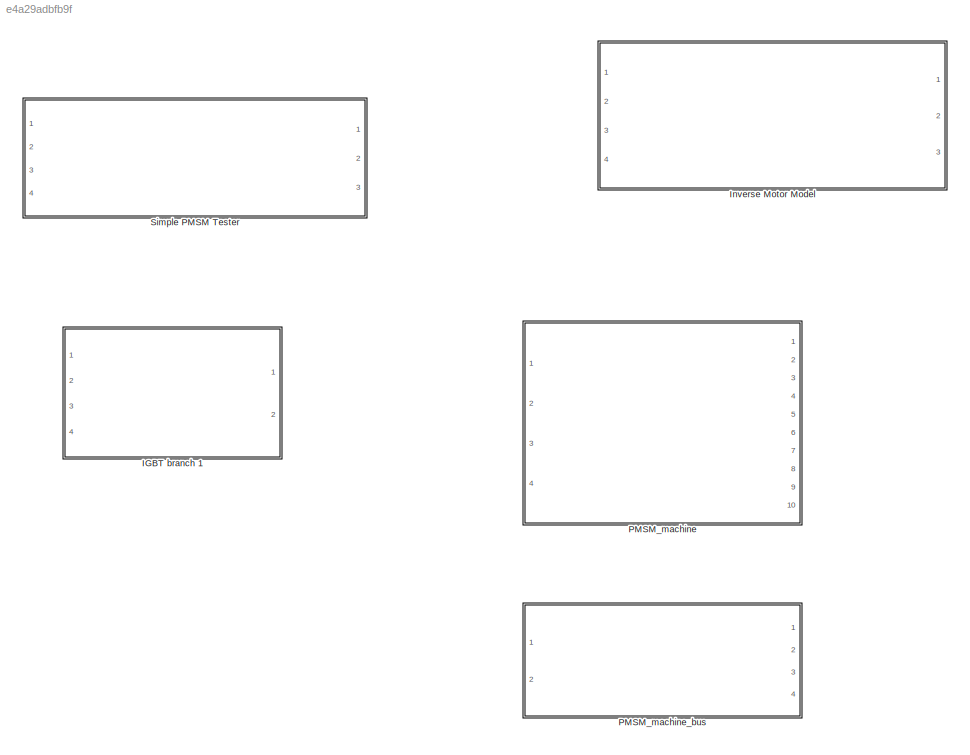
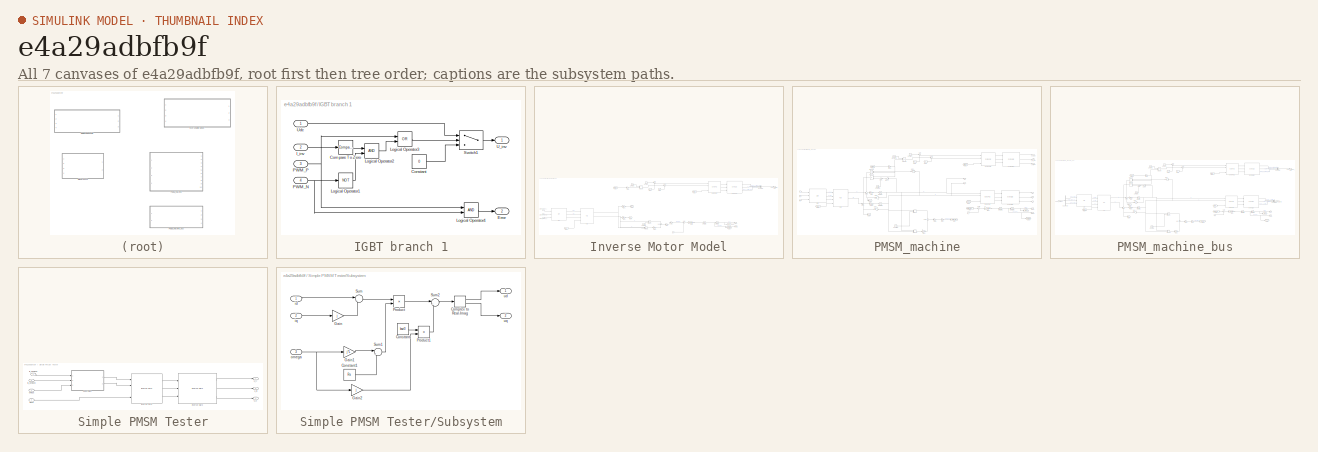
[diagram: thumbnail index - all 7 canvases of the model, root first then tree order]
MODEL slx_e4a29adbfb9f
KIND library
CONFIG AbsTol = auto
CONFIG EnableMultiTasking = off
CONFIG FixedStep = auto
CONFIG MaxStep = auto
CONFIG MinStep = auto
CONFIG RelTol = 1e-3
CONFIG SampleTimeConstraint = Unconstrained
CONFIG Solver = VariableStepAuto
CONFIG SolverName = VariableStepAuto
CONFIG StartTime = 0.0
CONFIG StopTime = 10.0
BLOCK [SubSystem] IGBT branch 1
  Ports = [4, 2]
  RequestExecContextInheritance = off
BLOCK [Reference] IGBT branch 1/Compare To Zero  REF=simulink/Logic and Bit
Operations/Compare
To Zero
  Ports = [1, 1]
  SourceBlock = simulink/Logic and Bit\nOperations/Compare\nTo Zero
  SourceProductBaseCode = SL
  SourceProductName = Simulink
  SourceType = Compare To Zero
BLOCK [Constant] IGBT branch 1/Constant
  Value = 0
BLOCK [Outport] IGBT branch 1/Error
  IconDisplay = Port number
  OutDataTypeStr = boolean
  Port = 2
BLOCK [Inport] IGBT branch 1/I_inv
  IconDisplay = Port number
  Port = 2
BLOCK [Logic] IGBT branch 1/Logical Operator1
  AllPortsSameDT = off
  Operator = NOT
  OutDataTypeStr = boolean
  Ports = [1, 1]
BLOCK [Logic] IGBT branch 1/Logical Operator2
  AllPortsSameDT = off
  OutDataTypeStr = boolean
  Ports = [2, 1]
BLOCK [Logic] IGBT branch 1/Logical Operator3
  AllPortsSameDT = off
  Operator = OR
  OutDataTypeStr = boolean
  Ports = [2, 1]
BLOCK [Logic] IGBT branch 1/Logical Operator4
  AllPortsSameDT = off
  OutDataTypeStr = boolean
  Ports = [2, 1]
BLOCK [Inport] IGBT branch 1/PWM_N
  IconDisplay = Port number
  Port = 4
BLOCK [Inport] IGBT branch 1/PWM_P
  IconDisplay = Port number
  Port = 3
BLOCK [Switch] IGBT branch 1/Switch1
  Criteria = u2 > Threshold
  InputSameDT = off
  SaturateOnIntegerOverflow = off
BLOCK [Outport] IGBT branch 1/U_inv
  IconDisplay = Port number
BLOCK [Inport] IGBT branch 1/Udc
  IconDisplay = Port number
BLOCK [SubSystem] Inverse Motor Model
  Ports = [4, 3]
  RequestExecContextInheritance = off
BLOCK [BusCreator] Inverse Motor Model/Bus Creator
  DisplayOption = bar
  InheritFromInputs = on
  Inputs = 3
  Ports = [3, 1]
BLOCK [Reference] Inverse Motor Model/Clark  REF=coordinate_transformations/Clark  (lib defined in slx_d357c885b4a9)
  Ports = [3, 3]
  SourceBlock = coordinate_transformations/Clark
  SourceType = SubSystem
BLOCK [Constant] Inverse Motor Model/Constant
  Value = 0
BLOCK [Constant] Inverse Motor Model/Constant1
  Value = kszi0
BLOCK [Constant] Inverse Motor Model/Constant2
  Value = kszi0
BLOCK [Inport] Inverse Motor Model/Current_Phase_A
  IconDisplay = Port number
BLOCK [Inport] Inverse Motor Model/Current_Phase_B
  IconDisplay = Port number
  Port = 2
BLOCK [Inport] Inverse Motor Model/Current_Phase_C
  IconDisplay = Port number
  Port = 3
BLOCK [From] Inverse Motor Model/From
  GotoTag = alpha
BLOCK [From] Inverse Motor Model/From1
  GotoTag = omega
BLOCK [From] Inverse Motor Model/From2
  GotoTag = alpha
BLOCK [From] Inverse Motor Model/From5
  GotoTag = Ud_r
BLOCK [From] Inverse Motor Model/From6
  GotoTag = Ul_r
BLOCK [Gain] Inverse Motor Model/Gain1
  Gain = Rs
  OutDataTypeStr = Inherit: Inherit via internal rule
  ParamDataTypeStr = Inherit: Inherit via internal rule
  SaturateOnIntegerOverflow = off
BLOCK [Gain] Inverse Motor Model/Gain2
  Gain = Rs
  OutDataTypeStr = Inherit: Inherit via internal rule
  ParamDataTypeStr = Inherit: Inherit via internal rule
  SaturateOnIntegerOverflow = off
BLOCK [Gain] Inverse Motor Model/Gain4
  Gain = 1/Theta
  OutDataTypeStr = Inherit: Inherit via internal rule
  ParamDataTypeStr = Inherit: Inherit via internal rule
  SaturateOnIntegerOverflow = off
BLOCK [Gain] Inverse Motor Model/Gain5
  Gain = Ld-Lq
  OutDataTypeStr = Inherit: Inherit via internal rule
  ParamDataTypeStr = Inherit: Inherit via internal rule
  SaturateOnIntegerOverflow = off
BLOCK [Gain] Inverse Motor Model/Gain6
  Gain = pp
  OutDataTypeStr = Inherit: Inherit via internal rule
  ParamDataTypeStr = Inherit: Inherit via internal rule
  SaturateOnIntegerOverflow = off
BLOCK [Gain] Inverse Motor Model/Gain7
  Gain = 3/2
  OutDataTypeStr = Inherit: Inherit via internal rule
  ParamDataTypeStr = Inherit: Inherit via internal rule
  SaturateOnIntegerOverflow = off
BLOCK [Gain] Inverse Motor Model/Gain9
  Gain = pp
  OutDataTypeStr = Inherit: Inherit via internal rule
  ParamDataTypeStr = Inherit: Inherit via internal rule
  SaturateOnIntegerOverflow = off
BLOCK [Goto] Inverse Motor Model/Goto1
  GotoTag = omega
BLOCK [Goto] Inverse Motor Model/Goto2
  GotoTag = alpha
BLOCK [Goto] Inverse Motor Model/Goto3
  GotoTag = Ud_r
BLOCK [Goto] Inverse Motor Model/Goto4
  GotoTag = Ul_r
BLOCK [Integrator] Inverse Motor Model/Integrator2
  Ports = [1, 1]
BLOCK [Integrator] Inverse Motor Model/Integrator3
  Ports = [1, 1]
BLOCK [Reference] Inverse Motor Model/Inverse-Clark1  REF=coordinate_transformations/Inverse-Clark  (lib defined in slx_d357c885b4a9)
  Ports = [3, 3]
  SourceBlock = coordinate_transformations/Inverse-Clark
  SourceType = SubSystem
BLOCK [Reference] Inverse Motor Model/Inverse-Park1  REF=coordinate_transformations/Inverse-Park  (lib defined in slx_d357c885b4a9)
  Ports = [4, 3]
  SourceBlock = coordinate_transformations/Inverse-Park
  SourceType = SubSystem
BLOCK [Inport] Inverse Motor Model/M_T
  IconDisplay = Port number
  Port = 4
BLOCK [Reference] Inverse Motor Model/Park  REF=coordinate_transformations/Park  (lib defined in slx_d357c885b4a9)
  Ports = [4, 3]
  SourceBlock = coordinate_transformations/Park
  SourceType = SubSystem
BLOCK [Outport] Inverse Motor Model/Phase_Voltages_EMU
  IconDisplay = Port number
BLOCK [Product] Inverse Motor Model/Product
  InputSameDT = off
  OutDataTypeStr = Inherit: Inherit via internal rule
  Ports = [2, 1]
  RndMeth = Floor
  SaturateOnIntegerOverflow = off
BLOCK [Product] Inverse Motor Model/Product1
  InputSameDT = off
  OutDataTypeStr = Inherit: Inherit via internal rule
  Ports = [2, 1]
  RndMeth = Floor
  SaturateOnIntegerOverflow = off
BLOCK [Product] Inverse Motor Model/Product4
  InputSameDT = off
  OutDataTypeStr = Inherit: Inherit via internal rule
  Ports = [2, 1]
  RndMeth = Floor
  SaturateOnIntegerOverflow = off
BLOCK [Sum] Inverse Motor Model/Sum
  IconShape = round
  InputSameDT = off
  Inputs = |++
  OutDataTypeStr = Inherit: Inherit via internal rule
  Ports = [2, 1]
  SaturateOnIntegerOverflow = off
BLOCK [Sum] Inverse Motor Model/Sum3
  IconShape = round
  InputSameDT = off
  Inputs = |++
  OutDataTypeStr = Inherit: Inherit via internal rule
  Ports = [2, 1]
  SaturateOnIntegerOverflow = off
BLOCK [Sum] Inverse Motor Model/Sum5
  IconShape = round
  InputSameDT = off
  Inputs = +|+
  OutDataTypeStr = Inherit: Inherit via internal rule
  Ports = [2, 1]
  SaturateOnIntegerOverflow = off
BLOCK [Sum] Inverse Motor Model/Sum6
  IconShape = round
  InputSameDT = off
  Inputs = |+-
  OutDataTypeStr = Inherit: Inherit via internal rule
  Ports = [2, 1]
  SaturateOnIntegerOverflow = off
BLOCK [Outport] Inverse Motor Model/alpha
  IconDisplay = Port number
  Port = 2
BLOCK [Outport] Inverse Motor Model/omega
  IconDisplay = Port number
  Port = 3
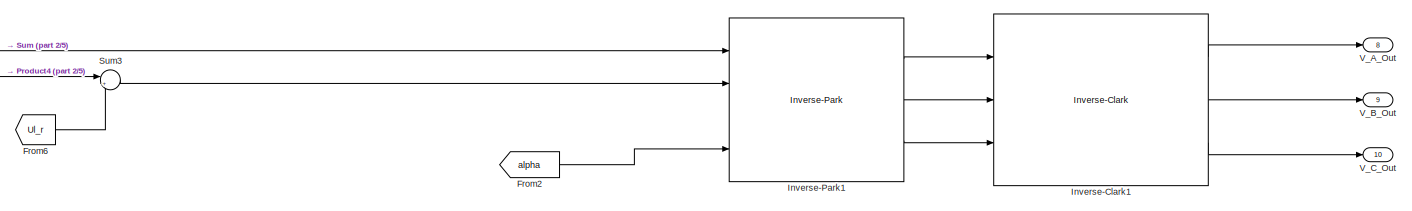
[diagram: PMSM_machine - part 1/5, top right region]
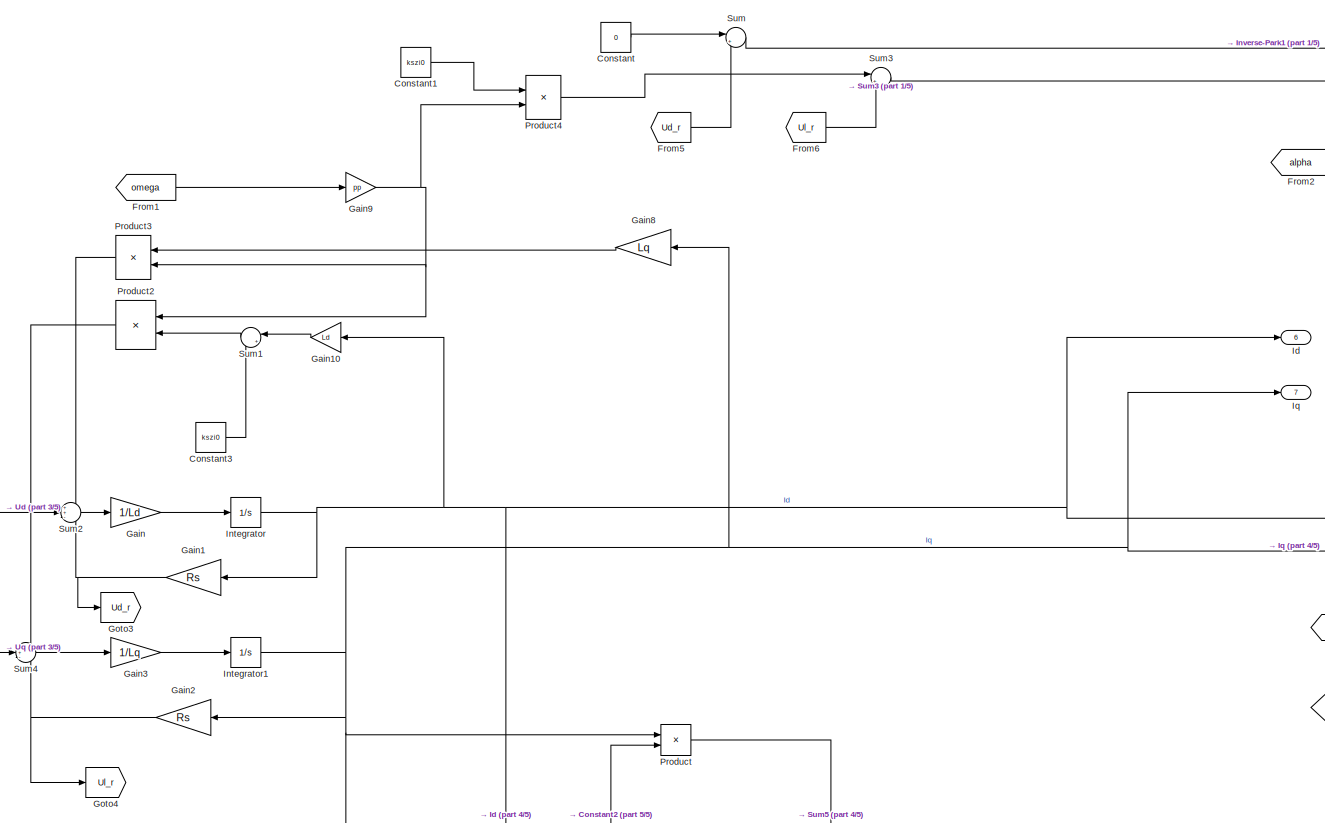
[diagram: PMSM_machine - part 2/5, center side, full height]
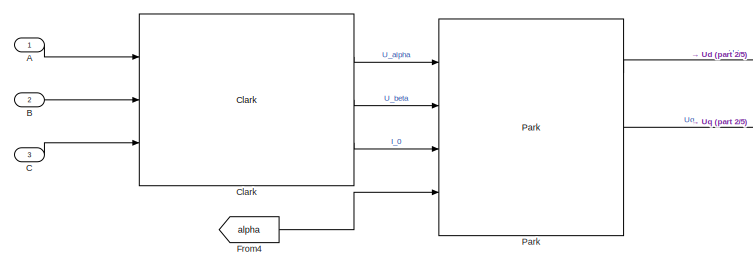
[diagram: PMSM_machine - part 3/5, middle left region]
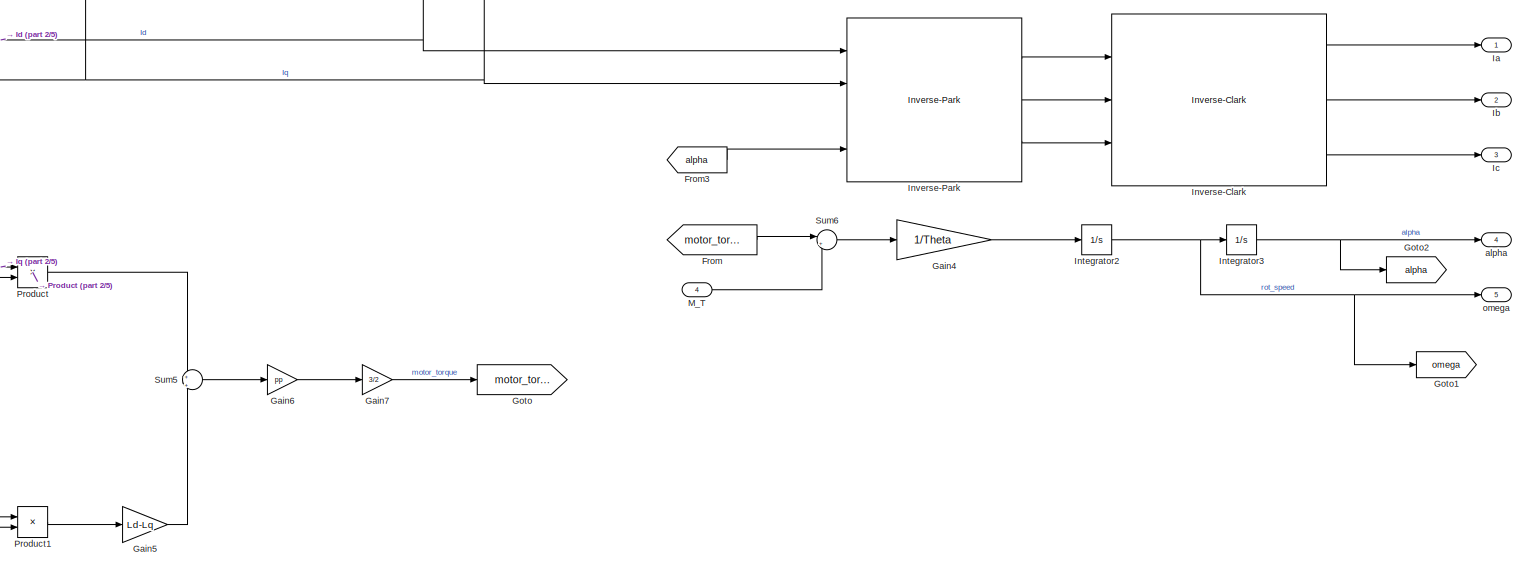
[diagram: PMSM_machine - part 4/5, bottom right region]
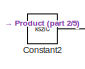
[diagram: PMSM_machine - part 5/5, bottom center region]
BLOCK [SubSystem] PMSM_machine
  Ports = [4, 10]
  RequestExecContextInheritance = off
BLOCK [Inport] PMSM_machine/A
  IconDisplay = Port number
BLOCK [Inport] PMSM_machine/B
  IconDisplay = Port number
  Port = 2
BLOCK [Inport] PMSM_machine/C
  IconDisplay = Port number
  Port = 3
BLOCK [Reference] PMSM_machine/Clark  REF=coordinate_transformations/Clark  (lib defined in slx_d357c885b4a9)
  Ports = [3, 3]
  SourceBlock = coordinate_transformations/Clark
  SourceType = SubSystem
BLOCK [Constant] PMSM_machine/Constant
  Value = 0
BLOCK [Constant] PMSM_machine/Constant1
  Value = kszi0
BLOCK [Constant] PMSM_machine/Constant2
  Value = kszi0
BLOCK [Constant] PMSM_machine/Constant3
  Value = kszi0
BLOCK [From] PMSM_machine/From
  GotoTag = motor_torque
BLOCK [From] PMSM_machine/From1
  GotoTag = omega
BLOCK [From] PMSM_machine/From2
  GotoTag = alpha
BLOCK [From] PMSM_machine/From3
  GotoTag = alpha
BLOCK [From] PMSM_machine/From4
  GotoTag = alpha
BLOCK [From] PMSM_machine/From5
  GotoTag = Ud_r
BLOCK [From] PMSM_machine/From6
  GotoTag = Ul_r
BLOCK [Gain] PMSM_machine/Gain
  Gain = 1/Ld
  OutDataTypeStr = Inherit: Inherit via internal rule
  ParamDataTypeStr = Inherit: Inherit via internal rule
  SaturateOnIntegerOverflow = off
BLOCK [Gain] PMSM_machine/Gain1
  Gain = Rs
  OutDataTypeStr = Inherit: Inherit via internal rule
  ParamDataTypeStr = Inherit: Inherit via internal rule
  SaturateOnIntegerOverflow = off
BLOCK [Gain] PMSM_machine/Gain10
  Gain = Ld
  OutDataTypeStr = Inherit: Inherit via internal rule
  ParamDataTypeStr = Inherit: Inherit via internal rule
  SaturateOnIntegerOverflow = off
BLOCK [Gain] PMSM_machine/Gain2
  Gain = Rs
  OutDataTypeStr = Inherit: Inherit via internal rule
  ParamDataTypeStr = Inherit: Inherit via internal rule
  SaturateOnIntegerOverflow = off
BLOCK [Gain] PMSM_machine/Gain3
  Gain = 1/Lq
  OutDataTypeStr = Inherit: Inherit via internal rule
  ParamDataTypeStr = Inherit: Inherit via internal rule
  SaturateOnIntegerOverflow = off
BLOCK [Gain] PMSM_machine/Gain4
  Gain = 1/Theta
  OutDataTypeStr = Inherit: Inherit via internal rule
  ParamDataTypeStr = Inherit: Inherit via internal rule
  SaturateOnIntegerOverflow = off
BLOCK [Gain] PMSM_machine/Gain5
  Gain = Ld-Lq
  OutDataTypeStr = Inherit: Inherit via internal rule
  ParamDataTypeStr = Inherit: Inherit via internal rule
  SaturateOnIntegerOverflow = off
BLOCK [Gain] PMSM_machine/Gain6
  Gain = pp
  OutDataTypeStr = Inherit: Inherit via internal rule
  ParamDataTypeStr = Inherit: Inherit via internal rule
  SaturateOnIntegerOverflow = off
BLOCK [Gain] PMSM_machine/Gain7
  Gain = 3/2
  OutDataTypeStr = Inherit: Inherit via internal rule
  ParamDataTypeStr = Inherit: Inherit via internal rule
  SaturateOnIntegerOverflow = off
BLOCK [Gain] PMSM_machine/Gain8
  Gain = Lq
  OutDataTypeStr = Inherit: Inherit via internal rule
  ParamDataTypeStr = Inherit: Inherit via internal rule
  SaturateOnIntegerOverflow = off
BLOCK [Gain] PMSM_machine/Gain9
  Gain = pp
  OutDataTypeStr = Inherit: Inherit via internal rule
  ParamDataTypeStr = Inherit: Inherit via internal rule
  SaturateOnIntegerOverflow = off
BLOCK [Goto] PMSM_machine/Goto
  GotoTag = motor_torque
BLOCK [Goto] PMSM_machine/Goto1
  GotoTag = omega
BLOCK [Goto] PMSM_machine/Goto2
  GotoTag = alpha
BLOCK [Goto] PMSM_machine/Goto3
  GotoTag = Ud_r
BLOCK [Goto] PMSM_machine/Goto4
  GotoTag = Ul_r
BLOCK [Outport] PMSM_machine/Ia
  IconDisplay = Port number
BLOCK [Outport] PMSM_machine/Ib
  IconDisplay = Port number
  Port = 2
BLOCK [Outport] PMSM_machine/Ic
  IconDisplay = Port number
  Port = 3
BLOCK [Outport] PMSM_machine/Id
  IconDisplay = Port number
  Port = 6
BLOCK [Integrator] PMSM_machine/Integrator
  Ports = [1, 1]
BLOCK [Integrator] PMSM_machine/Integrator1
  Ports = [1, 1]
BLOCK [Integrator] PMSM_machine/Integrator2
  Ports = [1, 1]
BLOCK [Integrator] PMSM_machine/Integrator3
  Ports = [1, 1]
BLOCK [Reference] PMSM_machine/Inverse-Clark  REF=coordinate_transformations/Inverse-Clark  (lib defined in slx_d357c885b4a9)
  Ports = [3, 3]
  SourceBlock = coordinate_transformations/Inverse-Clark
  SourceType = SubSystem
BLOCK [Reference] PMSM_machine/Inverse-Clark1  REF=coordinate_transformations/Inverse-Clark  (lib defined in slx_d357c885b4a9)
  Ports = [3, 3]
  SourceBlock = coordinate_transformations/Inverse-Clark
  SourceType = SubSystem
BLOCK [Reference] PMSM_machine/Inverse-Park  REF=coordinate_transformations/Inverse-Park  (lib defined in slx_d357c885b4a9)
  Ports = [4, 3]
  SourceBlock = coordinate_transformations/Inverse-Park
  SourceType = SubSystem
BLOCK [Reference] PMSM_machine/Inverse-Park1  REF=coordinate_transformations/Inverse-Park  (lib defined in slx_d357c885b4a9)
  Ports = [4, 3]
  SourceBlock = coordinate_transformations/Inverse-Park
  SourceType = SubSystem
BLOCK [Outport] PMSM_machine/Iq 
  IconDisplay = Port number
  Port = 7
BLOCK [Inport] PMSM_machine/M_T
  IconDisplay = Port number
  Port = 4
BLOCK [Reference] PMSM_machine/Park  REF=coordinate_transformations/Park  (lib defined in slx_d357c885b4a9)
  Ports = [4, 3]
  SourceBlock = coordinate_transformations/Park
  SourceType = SubSystem
BLOCK [Product] PMSM_machine/Product
  InputSameDT = off
  OutDataTypeStr = Inherit: Inherit via internal rule
  Ports = [2, 1]
  RndMeth = Floor
  SaturateOnIntegerOverflow = off
BLOCK [Product] PMSM_machine/Product1
  InputSameDT = off
  OutDataTypeStr = Inherit: Inherit via internal rule
  Ports = [2, 1]
  RndMeth = Floor
  SaturateOnIntegerOverflow = off
BLOCK [Product] PMSM_machine/Product2
  InputSameDT = off
  OutDataTypeStr = Inherit: Inherit via internal rule
  Ports = [2, 1]
  RndMeth = Floor
  SaturateOnIntegerOverflow = off
BLOCK [Product] PMSM_machine/Product3
  InputSameDT = off
  OutDataTypeStr = Inherit: Inherit via internal rule
  Ports = [2, 1]
  RndMeth = Floor
  SaturateOnIntegerOverflow = off
BLOCK [Product] PMSM_machine/Product4
  InputSameDT = off
  OutDataTypeStr = Inherit: Inherit via internal rule
  Ports = [2, 1]
  RndMeth = Floor
  SaturateOnIntegerOverflow = off
BLOCK [Sum] PMSM_machine/Sum
  IconShape = round
  InputSameDT = off
  Inputs = |++
  OutDataTypeStr = Inherit: Inherit via internal rule
  Ports = [2, 1]
  SaturateOnIntegerOverflow = off
BLOCK [Sum] PMSM_machine/Sum1
  IconShape = round
  InputSameDT = off
  Inputs = |++
  OutDataTypeStr = Inherit: Inherit via internal rule
  Ports = [2, 1]
  SaturateOnIntegerOverflow = off
BLOCK [Sum] PMSM_machine/Sum2
  IconShape = round
  InputSameDT = off
  Inputs = ++-
  OutDataTypeStr = Inherit: Inherit via internal rule
  Ports = [3, 1]
  SaturateOnIntegerOverflow = off
BLOCK [Sum] PMSM_machine/Sum3
  IconShape = round
  InputSameDT = off
  Inputs = |++
  OutDataTypeStr = Inherit: Inherit via internal rule
  Ports = [2, 1]
  SaturateOnIntegerOverflow = off
BLOCK [Sum] PMSM_machine/Sum4
  IconShape = round
  InputSameDT = off
  Inputs = -+-
  OutDataTypeStr = Inherit: Inherit via internal rule
  Ports = [3, 1]
  SaturateOnIntegerOverflow = off
BLOCK [Sum] PMSM_machine/Sum5
  IconShape = round
  InputSameDT = off
  Inputs = +|+
  OutDataTypeStr = Inherit: Inherit via internal rule
  Ports = [2, 1]
  SaturateOnIntegerOverflow = off
BLOCK [Sum] PMSM_machine/Sum6
  IconShape = round
  InputSameDT = off
  Inputs = |+-
  OutDataTypeStr = Inherit: Inherit via internal rule
  Ports = [2, 1]
  SaturateOnIntegerOverflow = off
BLOCK [Outport] PMSM_machine/V_A_Out
  IconDisplay = Port number
  Port = 8
BLOCK [Outport] PMSM_machine/V_B_Out
  IconDisplay = Port number
  Port = 9
BLOCK [Outport] PMSM_machine/V_C_Out
  IconDisplay = Port number
  Port = 10
BLOCK [Outport] PMSM_machine/alpha
  IconDisplay = Port number
  Port = 4
BLOCK [Outport] PMSM_machine/omega
  IconDisplay = Port number
  Port = 5
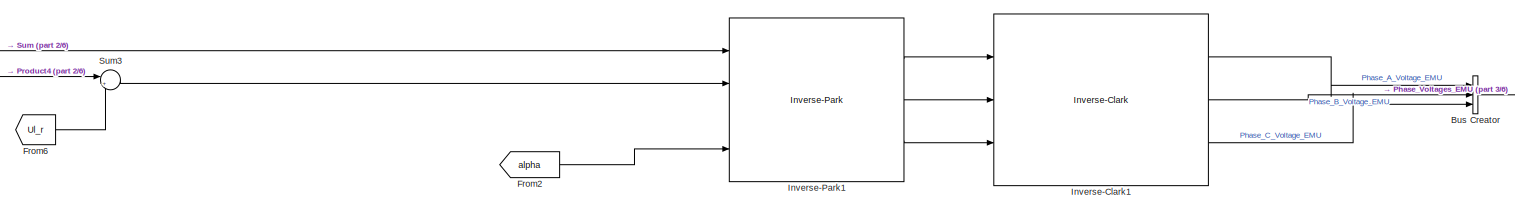
[diagram: PMSM_machine_bus - part 1/6, top right region]
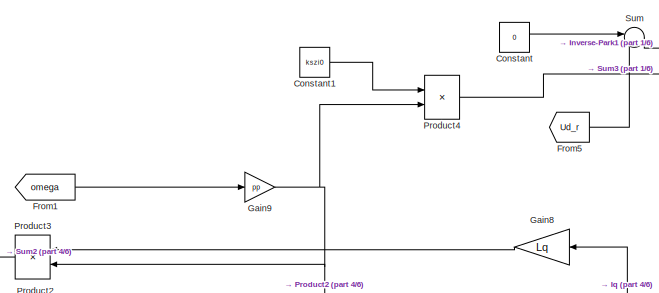
[diagram: PMSM_machine_bus - part 2/6, top center region]
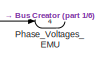
[diagram: PMSM_machine_bus - part 3/6, top right region]
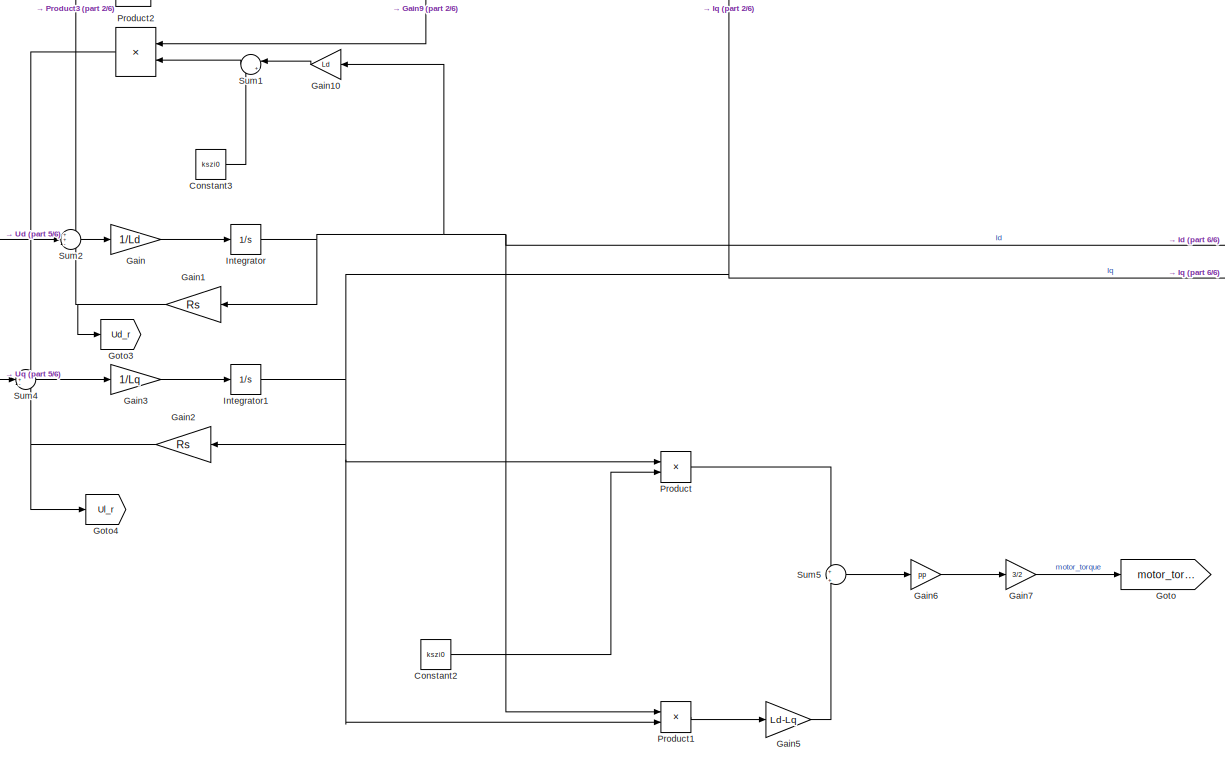
[diagram: PMSM_machine_bus - part 4/6, central region]
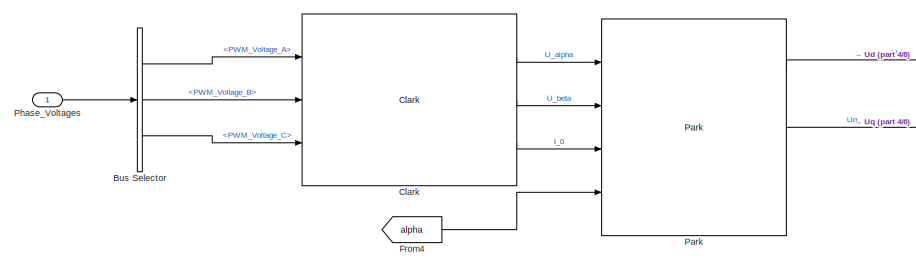
[diagram: PMSM_machine_bus - part 5/6, middle left region]
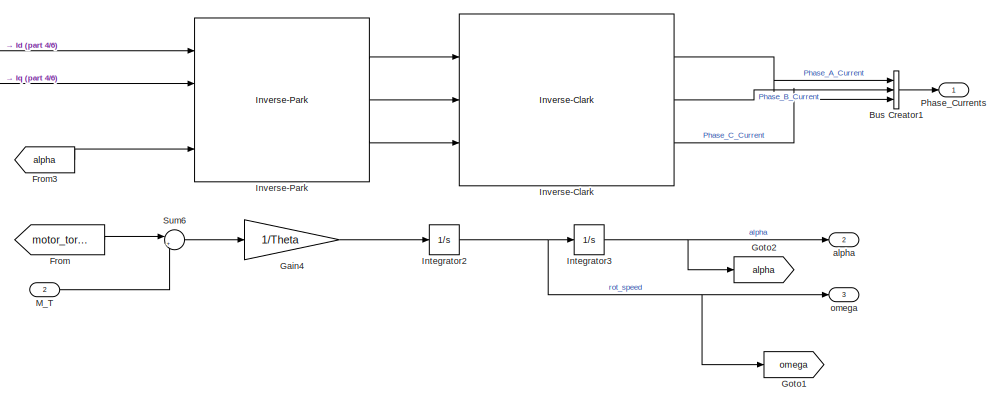
[diagram: PMSM_machine_bus - part 6/6, middle right region]
BLOCK [SubSystem] PMSM_machine_bus
  AncestorBlock = PE_components/PMSM_machine
  Ports = [2, 4]
  RequestExecContextInheritance = off
BLOCK [BusCreator] PMSM_machine_bus/Bus Creator
  DisplayOption = bar
  InheritFromInputs = on
  Inputs = 3
  Ports = [3, 1]
BLOCK [BusCreator] PMSM_machine_bus/Bus Creator1
  DisplayOption = bar
  InheritFromInputs = on
  Inputs = 3
  Ports = [3, 1]
BLOCK [BusSelector] PMSM_machine_bus/Bus Selector
  OutputAsBus = off
  OutputSignals = PWM_Voltage_A,PWM_Voltage_B,PWM_Voltage_C
  Ports = [1, 3]
BLOCK [Reference] PMSM_machine_bus/Clark  REF=coordinate_transformations/Clark  (lib defined in slx_d357c885b4a9)
  Ports = [3, 3]
  SourceBlock = coordinate_transformations/Clark
  SourceType = SubSystem
BLOCK [Constant] PMSM_machine_bus/Constant
  Value = 0
BLOCK [Constant] PMSM_machine_bus/Constant1
  Value = kszi0
BLOCK [Constant] PMSM_machine_bus/Constant2
  Value = kszi0
BLOCK [Constant] PMSM_machine_bus/Constant3
  Value = kszi0
BLOCK [From] PMSM_machine_bus/From
  GotoTag = motor_torque
BLOCK [From] PMSM_machine_bus/From1
  GotoTag = omega
BLOCK [From] PMSM_machine_bus/From2
  GotoTag = alpha
BLOCK [From] PMSM_machine_bus/From3
  GotoTag = alpha
BLOCK [From] PMSM_machine_bus/From4
  GotoTag = alpha
BLOCK [From] PMSM_machine_bus/From5
  GotoTag = Ud_r
BLOCK [From] PMSM_machine_bus/From6
  GotoTag = Ul_r
BLOCK [Gain] PMSM_machine_bus/Gain
  Gain = 1/Ld
  OutDataTypeStr = Inherit: Inherit via internal rule
  ParamDataTypeStr = Inherit: Inherit via internal rule
  SaturateOnIntegerOverflow = off
BLOCK [Gain] PMSM_machine_bus/Gain1
  Gain = Rs
  OutDataTypeStr = Inherit: Inherit via internal rule
  ParamDataTypeStr = Inherit: Inherit via internal rule
  SaturateOnIntegerOverflow = off
BLOCK [Gain] PMSM_machine_bus/Gain10
  Gain = Ld
  OutDataTypeStr = Inherit: Inherit via internal rule
  ParamDataTypeStr = Inherit: Inherit via internal rule
  SaturateOnIntegerOverflow = off
BLOCK [Gain] PMSM_machine_bus/Gain2
  Gain = Rs
  OutDataTypeStr = Inherit: Inherit via internal rule
  ParamDataTypeStr = Inherit: Inherit via internal rule
  SaturateOnIntegerOverflow = off
BLOCK [Gain] PMSM_machine_bus/Gain3
  Gain = 1/Lq
  OutDataTypeStr = Inherit: Inherit via internal rule
  ParamDataTypeStr = Inherit: Inherit via internal rule
  SaturateOnIntegerOverflow = off
BLOCK [Gain] PMSM_machine_bus/Gain4
  Gain = 1/Theta
  OutDataTypeStr = Inherit: Inherit via internal rule
  ParamDataTypeStr = Inherit: Inherit via internal rule
  SaturateOnIntegerOverflow = off
BLOCK [Gain] PMSM_machine_bus/Gain5
  Gain = Ld-Lq
  OutDataTypeStr = Inherit: Inherit via internal rule
  ParamDataTypeStr = Inherit: Inherit via internal rule
  SaturateOnIntegerOverflow = off
BLOCK [Gain] PMSM_machine_bus/Gain6
  Gain = pp
  OutDataTypeStr = Inherit: Inherit via internal rule
  ParamDataTypeStr = Inherit: Inherit via internal rule
  SaturateOnIntegerOverflow = off
BLOCK [Gain] PMSM_machine_bus/Gain7
  Gain = 3/2
  OutDataTypeStr = Inherit: Inherit via internal rule
  ParamDataTypeStr = Inherit: Inherit via internal rule
  SaturateOnIntegerOverflow = off
BLOCK [Gain] PMSM_machine_bus/Gain8
  Gain = Lq
  OutDataTypeStr = Inherit: Inherit via internal rule
  ParamDataTypeStr = Inherit: Inherit via internal rule
  SaturateOnIntegerOverflow = off
BLOCK [Gain] PMSM_machine_bus/Gain9
  Gain = pp
  OutDataTypeStr = Inherit: Inherit via internal rule
  ParamDataTypeStr = Inherit: Inherit via internal rule
  SaturateOnIntegerOverflow = off
BLOCK [Goto] PMSM_machine_bus/Goto
  GotoTag = motor_torque
BLOCK [Goto] PMSM_machine_bus/Goto1
  GotoTag = omega
BLOCK [Goto] PMSM_machine_bus/Goto2
  GotoTag = alpha
BLOCK [Goto] PMSM_machine_bus/Goto3
  GotoTag = Ud_r
BLOCK [Goto] PMSM_machine_bus/Goto4
  GotoTag = Ul_r
BLOCK [Integrator] PMSM_machine_bus/Integrator
  Ports = [1, 1]
BLOCK [Integrator] PMSM_machine_bus/Integrator1
  Ports = [1, 1]
BLOCK [Integrator] PMSM_machine_bus/Integrator2
  Ports = [1, 1]
BLOCK [Integrator] PMSM_machine_bus/Integrator3
  Ports = [1, 1]
BLOCK [Reference] PMSM_machine_bus/Inverse-Clark  REF=coordinate_transformations/Inverse-Clark  (lib defined in slx_d357c885b4a9)
  Ports = [3, 3]
  SourceBlock = coordinate_transformations/Inverse-Clark
  SourceType = SubSystem
BLOCK [Reference] PMSM_machine_bus/Inverse-Clark1  REF=coordinate_transformations/Inverse-Clark  (lib defined in slx_d357c885b4a9)
  Ports = [3, 3]
  SourceBlock = coordinate_transformations/Inverse-Clark
  SourceType = SubSystem
BLOCK [Reference] PMSM_machine_bus/Inverse-Park  REF=coordinate_transformations/Inverse-Park  (lib defined in slx_d357c885b4a9)
  Ports = [4, 3]
  SourceBlock = coordinate_transformations/Inverse-Park
  SourceType = SubSystem
BLOCK [Reference] PMSM_machine_bus/Inverse-Park1  REF=coordinate_transformations/Inverse-Park  (lib defined in slx_d357c885b4a9)
  Ports = [4, 3]
  SourceBlock = coordinate_transformations/Inverse-Park
  SourceType = SubSystem
BLOCK [Inport] PMSM_machine_bus/M_T
  IconDisplay = Port number
  Port = 2
BLOCK [Reference] PMSM_machine_bus/Park  REF=coordinate_transformations/Park  (lib defined in slx_d357c885b4a9)
  Ports = [4, 3]
  SourceBlock = coordinate_transformations/Park
  SourceType = SubSystem
BLOCK [Outport] PMSM_machine_bus/Phase_Currents
  IconDisplay = Port number
BLOCK [Inport] PMSM_machine_bus/Phase_Voltages
  IconDisplay = Port number
BLOCK [Outport] PMSM_machine_bus/Phase_Voltages_EMU
  IconDisplay = Port number
  Port = 4
BLOCK [Product] PMSM_machine_bus/Product
  InputSameDT = off
  OutDataTypeStr = Inherit: Inherit via internal rule
  Ports = [2, 1]
  RndMeth = Floor
  SaturateOnIntegerOverflow = off
BLOCK [Product] PMSM_machine_bus/Product1
  InputSameDT = off
  OutDataTypeStr = Inherit: Inherit via internal rule
  Ports = [2, 1]
  RndMeth = Floor
  SaturateOnIntegerOverflow = off
BLOCK [Product] PMSM_machine_bus/Product2
  InputSameDT = off
  OutDataTypeStr = Inherit: Inherit via internal rule
  Ports = [2, 1]
  RndMeth = Floor
  SaturateOnIntegerOverflow = off
BLOCK [Product] PMSM_machine_bus/Product3
  InputSameDT = off
  OutDataTypeStr = Inherit: Inherit via internal rule
  Ports = [2, 1]
  RndMeth = Floor
  SaturateOnIntegerOverflow = off
BLOCK [Product] PMSM_machine_bus/Product4
  InputSameDT = off
  OutDataTypeStr = Inherit: Inherit via internal rule
  Ports = [2, 1]
  RndMeth = Floor
  SaturateOnIntegerOverflow = off
BLOCK [Sum] PMSM_machine_bus/Sum
  IconShape = round
  InputSameDT = off
  Inputs = |++
  OutDataTypeStr = Inherit: Inherit via internal rule
  Ports = [2, 1]
  SaturateOnIntegerOverflow = off
BLOCK [Sum] PMSM_machine_bus/Sum1
  IconShape = round
  InputSameDT = off
  Inputs = |++
  OutDataTypeStr = Inherit: Inherit via internal rule
  Ports = [2, 1]
  SaturateOnIntegerOverflow = off
BLOCK [Sum] PMSM_machine_bus/Sum2
  IconShape = round
  InputSameDT = off
  Inputs = ++-
  OutDataTypeStr = Inherit: Inherit via internal rule
  Ports = [3, 1]
  SaturateOnIntegerOverflow = off
BLOCK [Sum] PMSM_machine_bus/Sum3
  IconShape = round
  InputSameDT = off
  Inputs = |++
  OutDataTypeStr = Inherit: Inherit via internal rule
  Ports = [2, 1]
  SaturateOnIntegerOverflow = off
BLOCK [Sum] PMSM_machine_bus/Sum4
  IconShape = round
  InputSameDT = off
  Inputs = -+-
  OutDataTypeStr = Inherit: Inherit via internal rule
  Ports = [3, 1]
  SaturateOnIntegerOverflow = off
BLOCK [Sum] PMSM_machine_bus/Sum5
  IconShape = round
  InputSameDT = off
  Inputs = +|+
  OutDataTypeStr = Inherit: Inherit via internal rule
  Ports = [2, 1]
  SaturateOnIntegerOverflow = off
BLOCK [Sum] PMSM_machine_bus/Sum6
  IconShape = round
  InputSameDT = off
  Inputs = |+-
  OutDataTypeStr = Inherit: Inherit via internal rule
  Ports = [2, 1]
  SaturateOnIntegerOverflow = off
BLOCK [Outport] PMSM_machine_bus/alpha
  IconDisplay = Port number
  Port = 2
BLOCK [Outport] PMSM_machine_bus/omega
  IconDisplay = Port number
  Port = 3
BLOCK [SubSystem] Simple PMSM Tester
  Ports = [4, 3]
  RequestExecContextInheritance = off
BLOCK [Reference] Simple PMSM Tester/Inverse-Clark  REF=coordinate_transformations/Inverse-Clark  (lib defined in slx_d357c885b4a9)
  Ports = [3, 3]
  SourceBlock = coordinate_transformations/Inverse-Clark
  SourceType = SubSystem
BLOCK [Reference] Simple PMSM Tester/Inverse-Park  REF=coordinate_transformations/Inverse-Park  (lib defined in slx_d357c885b4a9)
  Ports = [4, 3]
  SourceBlock = coordinate_transformations/Inverse-Park
  SourceType = SubSystem
BLOCK [SubSystem] Simple PMSM Tester/Subsystem
  Ports = [3, 2]
  RequestExecContextInheritance = off
BLOCK [ComplexToRealImag] Simple PMSM Tester/Subsystem/Complex to Real-Imag
  Ports = [1, 2]
BLOCK [Constant] Simple PMSM Tester/Subsystem/Constant
  Value = kszi0
BLOCK [Constant] Simple PMSM Tester/Subsystem/Constant1
  Value = Rs
BLOCK [Gain] Simple PMSM Tester/Subsystem/Gain
  Gain = j
  OutDataTypeStr = Inherit: Inherit via internal rule
  ParamDataTypeStr = Inherit: Inherit via internal rule
  SaturateOnIntegerOverflow = off
BLOCK [Gain] Simple PMSM Tester/Subsystem/Gain1
  Gain = j*L
  OutDataTypeStr = Inherit: Inherit via internal rule
  ParamDataTypeStr = Inherit: Inherit via internal rule
  SaturateOnIntegerOverflow = off
BLOCK [Gain] Simple PMSM Tester/Subsystem/Gain2
  Gain = j
  OutDataTypeStr = Inherit: Inherit via internal rule
  ParamDataTypeStr = Inherit: Inherit via internal rule
  SaturateOnIntegerOverflow = off
BLOCK [Product] Simple PMSM Tester/Subsystem/Product
  InputSameDT = off
  OutDataTypeStr = Inherit: Inherit via internal rule
  Ports = [2, 1]
  RndMeth = Floor
  SaturateOnIntegerOverflow = off
BLOCK [Product] Simple PMSM Tester/Subsystem/Product1
  InputSameDT = off
  OutDataTypeStr = Inherit: Inherit via internal rule
  Ports = [2, 1]
  RndMeth = Floor
  SaturateOnIntegerOverflow = off
BLOCK [Sum] Simple PMSM Tester/Subsystem/Sum
  IconShape = round
  InputSameDT = off
  Inputs = |++
  OutDataTypeStr = Inherit: Inherit via internal rule
  Ports = [2, 1]
  SaturateOnIntegerOverflow = off
BLOCK [Sum] Simple PMSM Tester/Subsystem/Sum1
  IconShape = round
  InputSameDT = off
  Inputs = |++
  OutDataTypeStr = Inherit: Inherit via internal rule
  Ports = [2, 1]
  SaturateOnIntegerOverflow = off
BLOCK [Sum] Simple PMSM Tester/Subsystem/Sum2
  IconShape = round
  InputSameDT = off
  Inputs = |++
  OutDataTypeStr = Inherit: Inherit via internal rule
  Ports = [2, 1]
  SaturateOnIntegerOverflow = off
BLOCK [Inport] Simple PMSM Tester/Subsystem/id
  IconDisplay = Port number
BLOCK [Inport] Simple PMSM Tester/Subsystem/iq 
  IconDisplay = Port number
  Port = 2
BLOCK [Inport] Simple PMSM Tester/Subsystem/omega
  IconDisplay = Port number
  Port = 3
BLOCK [Outport] Simple PMSM Tester/Subsystem/ud
  IconDisplay = Port number
BLOCK [Outport] Simple PMSM Tester/Subsystem/uq
  IconDisplay = Port number
  Port = 2
BLOCK [Outport] Simple PMSM Tester/U_A
  IconDisplay = Port number
BLOCK [Outport] Simple PMSM Tester/U_B
  IconDisplay = Port number
  Port = 2
BLOCK [Outport] Simple PMSM Tester/U_C
  IconDisplay = Port number
  Port = 3
BLOCK [Inport] Simple PMSM Tester/alpha
  IconDisplay = Port number
  Port = 4
BLOCK [Inport] Simple PMSM Tester/id_demand
  IconDisplay = Port number
BLOCK [Inport] Simple PMSM Tester/iq_demand
  IconDisplay = Port number
  Port = 2
BLOCK [Inport] Simple PMSM Tester/omega
  IconDisplay = Port number
  Port = 3
LINE IGBT branch 1/Compare To Zero:1 -> IGBT branch 1/Logical Operator2:1
LINE IGBT branch 1/Constant:1 -> IGBT branch 1/Switch1:3
LINE IGBT branch 1/I_inv:1 -> IGBT branch 1/Compare To Zero:1
LINE IGBT branch 1/Logical Operator1:1 -> IGBT branch 1/Logical Operator2:2
LINE IGBT branch 1/Logical Operator2:1 -> IGBT branch 1/Logical Operator3:2
LINE IGBT branch 1/Logical Operator3:1 -> IGBT branch 1/Switch1:2
LINE IGBT branch 1/Logical Operator4:1 -> IGBT branch 1/Error:1
NET IGBT branch 1/PWM_N:1 -> IGBT branch 1/Logical Operator1:1, IGBT branch 1/Logical Operator4:2
NET IGBT branch 1/PWM_P:1 -> IGBT branch 1/Logical Operator3:1, IGBT branch 1/Logical Operator4:1
LINE IGBT branch 1/Switch1:1 -> IGBT branch 1/U_inv:1
LINE IGBT branch 1/Udc:1 -> IGBT branch 1/Switch1:1
LINE Inverse Motor Model/Bus Creator:1 -> Inverse Motor Model/Phase_Voltages_EMU:1
LINE Inverse Motor Model/Clark:1 -> Inverse Motor Model/Park:1
LINE Inverse Motor Model/Clark:2 -> Inverse Motor Model/Park:2
LINE Inverse Motor Model/Clark:3 -> Inverse Motor Model/Park:3
LINE Inverse Motor Model/Constant1:1 -> Inverse Motor Model/Product4:1
LINE Inverse Motor Model/Constant2:1 -> Inverse Motor Model/Product:2
LINE Inverse Motor Model/Constant:1 -> Inverse Motor Model/Sum:1
LINE Inverse Motor Model/Current_Phase_A:1 -> Inverse Motor Model/Clark:1
LINE Inverse Motor Model/Current_Phase_B:1 -> Inverse Motor Model/Clark:2
LINE Inverse Motor Model/Current_Phase_C:1 -> Inverse Motor Model/Clark:3
LINE Inverse Motor Model/From1:1 -> Inverse Motor Model/Gain9:1
LINE Inverse Motor Model/From2:1 -> Inverse Motor Model/Inverse-Park1:4
LINE Inverse Motor Model/From5:1 -> Inverse Motor Model/Sum:2
LINE Inverse Motor Model/From6:1 -> Inverse Motor Model/Sum3:2
LINE Inverse Motor Model/From:1 -> Inverse Motor Model/Park:4
LINE Inverse Motor Model/Gain1:1 -> Inverse Motor Model/Goto3:1
LINE Inverse Motor Model/Gain2:1 -> Inverse Motor Model/Goto4:1
LINE Inverse Motor Model/Gain4:1 -> Inverse Motor Model/Integrator2:1
LINE Inverse Motor Model/Gain5:1 -> Inverse Motor Model/Sum5:2
LINE Inverse Motor Model/Gain6:1 -> Inverse Motor Model/Gain7:1
LINE Inverse Motor Model/Gain7:1 -> Inverse Motor Model/Sum6:1
LINE Inverse Motor Model/Gain9:1 -> Inverse Motor Model/Product4:2
NET Inverse Motor Model/Integrator2:1 -> Inverse Motor Model/Goto1:1, Inverse Motor Model/Integrator3:1, Inverse Motor Model/omega:1
NET Inverse Motor Model/Integrator3:1 -> Inverse Motor Model/Goto2:1, Inverse Motor Model/alpha:1
LINE Inverse Motor Model/Inverse-Clark1:1 -> Inverse Motor Model/Bus Creator:1
LINE Inverse Motor Model/Inverse-Clark1:2 -> Inverse Motor Model/Bus Creator:2
LINE Inverse Motor Model/Inverse-Clark1:3 -> Inverse Motor Model/Bus Creator:3
LINE Inverse Motor Model/Inverse-Park1:1 -> Inverse Motor Model/Inverse-Clark1:1
LINE Inverse Motor Model/Inverse-Park1:2 -> Inverse Motor Model/Inverse-Clark1:2
LINE Inverse Motor Model/Inverse-Park1:3 -> Inverse Motor Model/Inverse-Clark1:3
LINE Inverse Motor Model/M_T:1 -> Inverse Motor Model/Sum6:2
NET Inverse Motor Model/Park:1 -> Inverse Motor Model/Gain1:1, Inverse Motor Model/Product1:1
NET Inverse Motor Model/Park:2 -> Inverse Motor Model/Gain2:1, Inverse Motor Model/Product1:2, Inverse Motor Model/Product:1
LINE Inverse Motor Model/Product1:1 -> Inverse Motor Model/Gain5:1
LINE Inverse Motor Model/Product4:1 -> Inverse Motor Model/Sum3:1
LINE Inverse Motor Model/Product:1 -> Inverse Motor Model/Sum5:1
LINE Inverse Motor Model/Sum3:1 -> Inverse Motor Model/Inverse-Park1:2
LINE Inverse Motor Model/Sum5:1 -> Inverse Motor Model/Gain6:1
LINE Inverse Motor Model/Sum6:1 -> Inverse Motor Model/Gain4:1
LINE Inverse Motor Model/Sum:1 -> Inverse Motor Model/Inverse-Park1:1
LINE PMSM_machine/A:1 -> PMSM_machine/Clark:1
LINE PMSM_machine/B:1 -> PMSM_machine/Clark:2
LINE PMSM_machine/C:1 -> PMSM_machine/Clark:3
LINE PMSM_machine/Clark:1 -> PMSM_machine/Park:1
LINE PMSM_machine/Clark:2 -> PMSM_machine/Park:2
LINE PMSM_machine/Clark:3 -> PMSM_machine/Park:3
LINE PMSM_machine/Constant1:1 -> PMSM_machine/Product4:1
LINE PMSM_machine/Constant2:1 -> PMSM_machine/Product:2
LINE PMSM_machine/Constant3:1 -> PMSM_machine/Sum1:2
LINE PMSM_machine/Constant:1 -> PMSM_machine/Sum:1
LINE PMSM_machine/From1:1 -> PMSM_machine/Gain9:1
LINE PMSM_machine/From2:1 -> PMSM_machine/Inverse-Park1:4
LINE PMSM_machine/From3:1 -> PMSM_machine/Inverse-Park:4
LINE PMSM_machine/From4:1 -> PMSM_machine/Park:4
LINE PMSM_machine/From5:1 -> PMSM_machine/Sum:2
LINE PMSM_machine/From6:1 -> PMSM_machine/Sum3:2
LINE PMSM_machine/From:1 -> PMSM_machine/Sum6:1
LINE PMSM_machine/Gain10:1 -> PMSM_machine/Sum1:1
NET PMSM_machine/Gain1:1 -> PMSM_machine/Goto3:1, PMSM_machine/Sum2:3
NET PMSM_machine/Gain2:1 -> PMSM_machine/Goto4:1, PMSM_machine/Sum4:3
LINE PMSM_machine/Gain3:1 -> PMSM_machine/Integrator1:1
LINE PMSM_machine/Gain4:1 -> PMSM_machine/Integrator2:1
LINE PMSM_machine/Gain5:1 -> PMSM_machine/Sum5:2
LINE PMSM_machine/Gain6:1 -> PMSM_machine/Gain7:1
LINE PMSM_machine/Gain7:1 -> PMSM_machine/Goto:1
LINE PMSM_machine/Gain8:1 -> PMSM_machine/Product3:1
NET PMSM_machine/Gain9:1 -> PMSM_machine/Product2:1, PMSM_machine/Product3:2, PMSM_machine/Product4:2
LINE PMSM_machine/Gain:1 -> PMSM_machine/Integrator:1
NET PMSM_machine/Integrator1:1 -> PMSM_machine/Gain2:1, PMSM_machine/Gain8:1, PMSM_machine/Inverse-Park:2, PMSM_machine/Iq :1, PMSM_machine/Product1:2, PMSM_machine/Product:1
NET PMSM_machine/Integrator2:1 -> PMSM_machine/Goto1:1, PMSM_machine/Integrator3:1, PMSM_machine/omega:1
NET PMSM_machine/Integrator3:1 -> PMSM_machine/Goto2:1, PMSM_machine/alpha:1
NET PMSM_machine/Integrator:1 -> PMSM_machine/Gain10:1, PMSM_machine/Gain1:1, PMSM_machine/Id:1, PMSM_machine/Inverse-Park:1, PMSM_machine/Product1:1
LINE PMSM_machine/Inverse-Clark1:1 -> PMSM_machine/V_A_Out:1
LINE PMSM_machine/Inverse-Clark1:2 -> PMSM_machine/V_B_Out:1
LINE PMSM_machine/Inverse-Clark1:3 -> PMSM_machine/V_C_Out:1
LINE PMSM_machine/Inverse-Clark:1 -> PMSM_machine/Ia:1
LINE PMSM_machine/Inverse-Clark:2 -> PMSM_machine/Ib:1
LINE PMSM_machine/Inverse-Clark:3 -> PMSM_machine/Ic:1
LINE PMSM_machine/Inverse-Park1:1 -> PMSM_machine/Inverse-Clark1:1
LINE PMSM_machine/Inverse-Park1:2 -> PMSM_machine/Inverse-Clark1:2
LINE PMSM_machine/Inverse-Park1:3 -> PMSM_machine/Inverse-Clark1:3
LINE PMSM_machine/Inverse-Park:1 -> PMSM_machine/Inverse-Clark:1
LINE PMSM_machine/Inverse-Park:2 -> PMSM_machine/Inverse-Clark:2
LINE PMSM_machine/Inverse-Park:3 -> PMSM_machine/Inverse-Clark:3
LINE PMSM_machine/M_T:1 -> PMSM_machine/Sum6:2
LINE PMSM_machine/Park:1 -> PMSM_machine/Sum2:2
LINE PMSM_machine/Park:2 -> PMSM_machine/Sum4:2
LINE PMSM_machine/Product1:1 -> PMSM_machine/Gain5:1
LINE PMSM_machine/Product2:1 -> PMSM_machine/Sum4:1
LINE PMSM_machine/Product3:1 -> PMSM_machine/Sum2:1
LINE PMSM_machine/Product4:1 -> PMSM_machine/Sum3:1
LINE PMSM_machine/Product:1 -> PMSM_machine/Sum5:1
LINE PMSM_machine/Sum1:1 -> PMSM_machine/Product2:2
LINE PMSM_machine/Sum2:1 -> PMSM_machine/Gain:1
LINE PMSM_machine/Sum3:1 -> PMSM_machine/Inverse-Park1:2
LINE PMSM_machine/Sum4:1 -> PMSM_machine/Gain3:1
LINE PMSM_machine/Sum5:1 -> PMSM_machine/Gain6:1
LINE PMSM_machine/Sum6:1 -> PMSM_machine/Gain4:1
LINE PMSM_machine/Sum:1 -> PMSM_machine/Inverse-Park1:1
LINE Simple PMSM Tester/Inverse-Clark:1 -> Simple PMSM Tester/U_A:1
LINE Simple PMSM Tester/Inverse-Clark:2 -> Simple PMSM Tester/U_B:1
LINE Simple PMSM Tester/Inverse-Clark:3 -> Simple PMSM Tester/U_C:1
LINE Simple PMSM Tester/Inverse-Park:1 -> Simple PMSM Tester/Inverse-Clark:1
LINE Simple PMSM Tester/Inverse-Park:2 -> Simple PMSM Tester/Inverse-Clark:2
LINE Simple PMSM Tester/Inverse-Park:3 -> Simple PMSM Tester/Inverse-Clark:3
LINE Simple PMSM Tester/Subsystem/Complex to Real-Imag:1 -> Simple PMSM Tester/Subsystem/ud:1
LINE Simple PMSM Tester/Subsystem/Complex to Real-Imag:2 -> Simple PMSM Tester/Subsystem/uq:1
LINE Simple PMSM Tester/Subsystem/Constant1:1 -> Simple PMSM Tester/Subsystem/Sum1:2
LINE Simple PMSM Tester/Subsystem/Constant:1 -> Simple PMSM Tester/Subsystem/Product1:1
LINE Simple PMSM Tester/Subsystem/Gain1:1 -> Simple PMSM Tester/Subsystem/Sum1:1
LINE Simple PMSM Tester/Subsystem/Gain2:1 -> Simple PMSM Tester/Subsystem/Product1:2
LINE Simple PMSM Tester/Subsystem/Gain:1 -> Simple PMSM Tester/Subsystem/Sum:2
LINE Simple PMSM Tester/Subsystem/Product1:1 -> Simple PMSM Tester/Subsystem/Sum2:2
LINE Simple PMSM Tester/Subsystem/Product:1 -> Simple PMSM Tester/Subsystem/Sum2:1
LINE Simple PMSM Tester/Subsystem/Sum1:1 -> Simple PMSM Tester/Subsystem/Product:2
LINE Simple PMSM Tester/Subsystem/Sum2:1 -> Simple PMSM Tester/Subsystem/Complex to Real-Imag:1
LINE Simple PMSM Tester/Subsystem/Sum:1 -> Simple PMSM Tester/Subsystem/Product:1
LINE Simple PMSM Tester/Subsystem/id:1 -> Simple PMSM Tester/Subsystem/Sum:1
LINE Simple PMSM Tester/Subsystem/iq :1 -> Simple PMSM Tester/Subsystem/Gain:1
NET Simple PMSM Tester/Subsystem/omega:1 -> Simple PMSM Tester/Subsystem/Gain1:1, Simple PMSM Tester/Subsystem/Gain2:1
LINE Simple PMSM Tester/Subsystem:1 -> Simple PMSM Tester/Inverse-Park:1
LINE Simple PMSM Tester/Subsystem:2 -> Simple PMSM Tester/Inverse-Park:2
LINE Simple PMSM Tester/alpha:1 -> Simple PMSM Tester/Inverse-Park:4
LINE Simple PMSM Tester/id_demand:1 -> Simple PMSM Tester/Subsystem:1
LINE Simple PMSM Tester/iq_demand:1 -> Simple PMSM Tester/Subsystem:2
LINE Simple PMSM Tester/omega:1 -> Simple PMSM Tester/Subsystem:3
note: NET lines group one-source signal fan-out (src -> all destinations, sorted); 1:1 wires keep LINE
